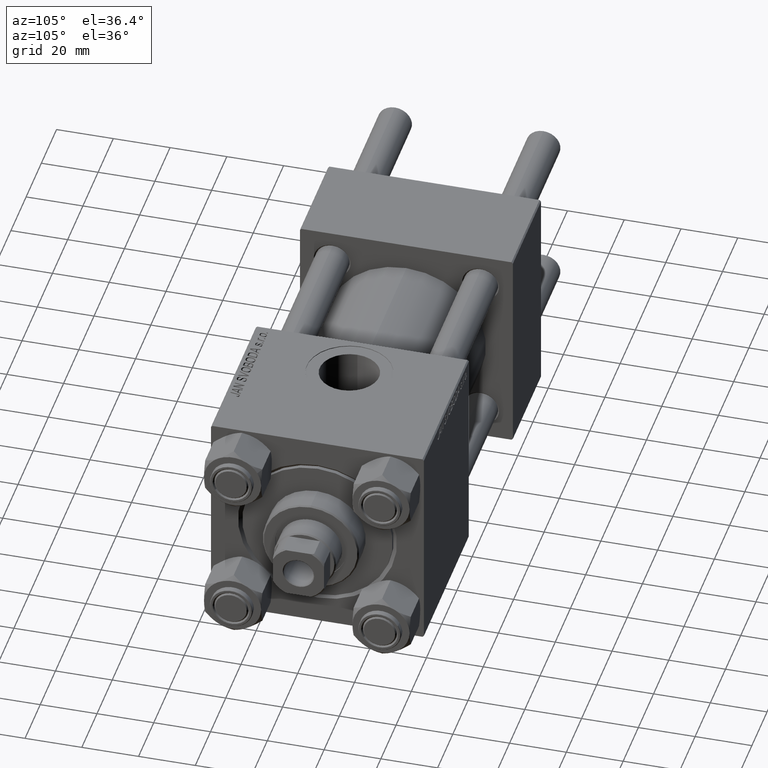
[diagram: clean part render]
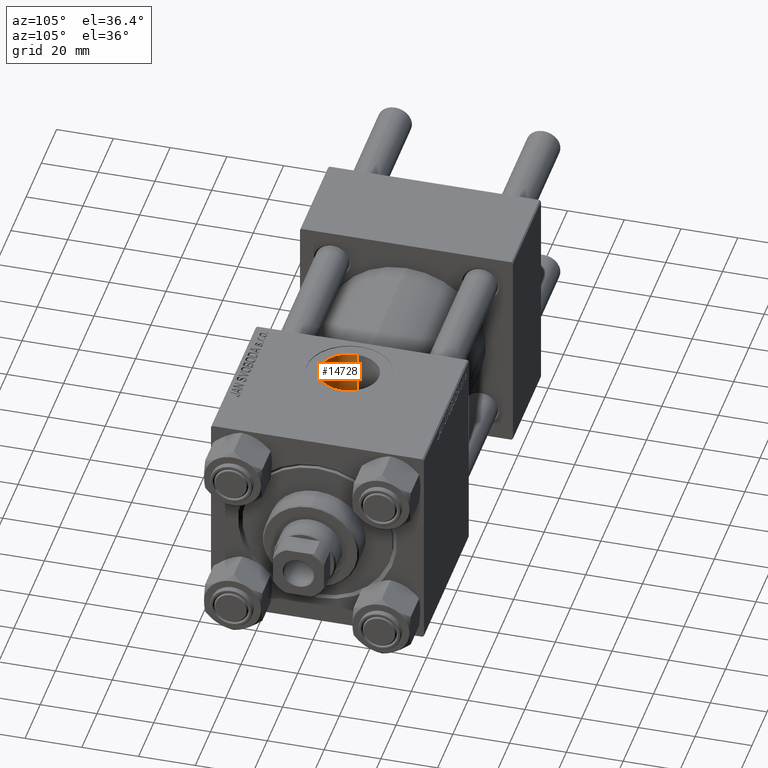
[diagram: same view with one face highlighted and labeled with its STEP entity id]
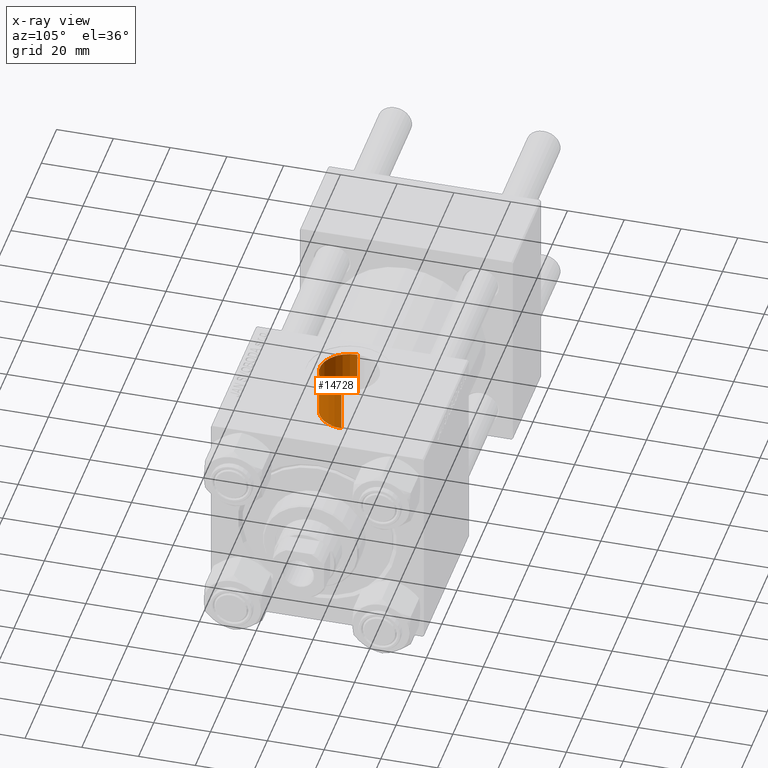
[diagram: x-ray of the same camera — body ghosted, the highlighted face saturated]
A machine part, auxiliary view. The second image highlights one B-rep face of the part: STEP entity #14728.
The next image is the same camera in x-ray: the body ghosted, the highlighted face saturated — about 0% of this face is hidden behind the body in this view.
In plain terms, the highlighted cylindrical surface (edge-blend (fillet) strip) has radius 10.48 mm, axis along (0, 0, -1).
Its self-contained STEP definition (entity closure, byte-faithful):
#1151 = DIRECTION ( 'NONE',  ( 1.000000000000000000, 0.000000000000000000, 0.000000000000000000 ) ) ;
#1303 = CIRCLE ( 'NONE', #39878, 10.48000000000000398 ) ;
#3019 = DIRECTION ( 'NONE',  ( 0.000000000000000000, 0.000000000000000000, -1.000000000000000000 ) ) ;
#3729 = VERTEX_POINT ( 'NONE', #10170 ) ;
#4906 = CIRCLE ( 'NONE', #30602, 10.48000000000000398 ) ;
#6306 = LINE ( 'NONE', #22135, #35364 ) ;
#10170 = CARTESIAN_POINT ( 'NONE',  ( 122.4800000000000040, -5.655464058400800522E-15, 37.29999999999998295 ) ) ;
#12502 = CARTESIAN_POINT ( 'NONE',  ( 112.0000000000000000, -6.938893903907226011E-15, 21.09999999999998010 ) ) ;
#12821 = CYLINDRICAL_SURFACE ( 'NONE', #23810, 10.48000000000000398 ) ;
#13259 = DIRECTION ( 'NONE',  ( -0.000000000000000000, -0.000000000000000000, -1.000000000000000000 ) ) ;
#13332 = VECTOR ( 'NONE', #38099, 1000.000000000000000 ) ;
#13860 = ORIENTED_EDGE ( 'NONE', *, *, #40466, .F. ) ;
#14728 = ADVANCED_FACE ( 'NONE', ( #43473 ), #12821, .F. ) ;
#15145 = CARTESIAN_POINT ( 'NONE',  ( 101.5199999999999960, -6.938893903907226011E-15, 37.29999999999998295 ) ) ;
#18286 = VERTEX_POINT ( 'NONE', #26664 ) ;
#18500 = LINE ( 'NONE', #22755, #13332 ) ;
#20292 = DIRECTION ( 'NONE',  ( 0.000000000000000000, 0.000000000000000000, 1.000000000000000000 ) ) ;
#21309 = EDGE_LOOP ( 'NONE', ( #43071, #38496, #13860, #43486 ) ) ;
#22135 = CARTESIAN_POINT ( 'NONE',  ( 101.5199999999999960, -6.938893903907226011E-15, 60.29999999999998295 ) ) ;
#22461 = DIRECTION ( 'NONE',  ( -1.000000000000000000, 0.000000000000000000, 0.000000000000000000 ) ) ;
#22755 = CARTESIAN_POINT ( 'NONE',  ( 122.4800000000000040, -5.655464058400799734E-15, 60.29999999999998295 ) ) ;
#23810 = AXIS2_PLACEMENT_3D ( 'NONE', #38301, #35690, #22461 ) ;
#26664 = CARTESIAN_POINT ( 'NONE',  ( 101.5199999999999960, -6.938893903907226011E-15, 21.09999999999998010 ) ) ;
#26940 = EDGE_CURVE ( 'NONE', #43954, #18286, #6306, .T. ) ;
#29090 = EDGE_CURVE ( 'NONE', #3729, #43954, #4906, .T. ) ;
#30602 = AXIS2_PLACEMENT_3D ( 'NONE', #47699, #13259, #45172 ) ;
#32466 = VERTEX_POINT ( 'NONE', #37972 ) ;
#35364 = VECTOR ( 'NONE', #3019, 1000.000000000000000 ) ;
#35690 = DIRECTION ( 'NONE',  ( 0.000000000000000000, 0.000000000000000000, -1.000000000000000000 ) ) ;
#37972 = CARTESIAN_POINT ( 'NONE',  ( 122.4800000000000040, -5.655464058400800522E-15, 21.09999999999998010 ) ) ;
#38099 = DIRECTION ( 'NONE',  ( 0.000000000000000000, 0.000000000000000000, -1.000000000000000000 ) ) ;
#38290 = EDGE_CURVE ( 'NONE', #3729, #32466, #18500, .T. ) ;
#38301 = CARTESIAN_POINT ( 'NONE',  ( 112.0000000000000000, -6.938893903907226011E-15, 60.29999999999998295 ) ) ;
#38496 = ORIENTED_EDGE ( 'NONE', *, *, #38290, .T. ) ;
#39878 = AXIS2_PLACEMENT_3D ( 'NONE', #12502, #20292, #1151 ) ;
#40466 = EDGE_CURVE ( 'NONE', #18286, #32466, #1303, .T. ) ;
#43071 = ORIENTED_EDGE ( 'NONE', *, *, #29090, .F. ) ;
#43473 = FACE_OUTER_BOUND ( 'NONE', #21309, .T. ) ;
#43486 = ORIENTED_EDGE ( 'NONE', *, *, #26940, .F. ) ;
#43954 = VERTEX_POINT ( 'NONE', #15145 ) ;
#45172 = DIRECTION ( 'NONE',  ( 1.000000000000000000, 0.000000000000000000, 0.000000000000000000 ) ) ;
#47699 = CARTESIAN_POINT ( 'NONE',  ( 112.0000000000000000, -6.938893903907226011E-15, 37.29999999999998295 ) ) ;